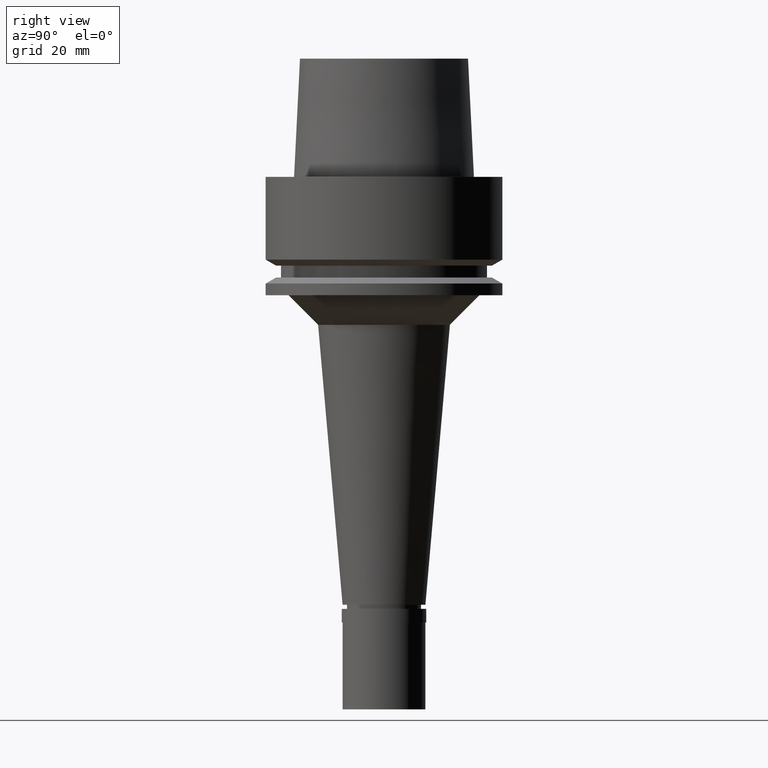
[diagram: clean part render]
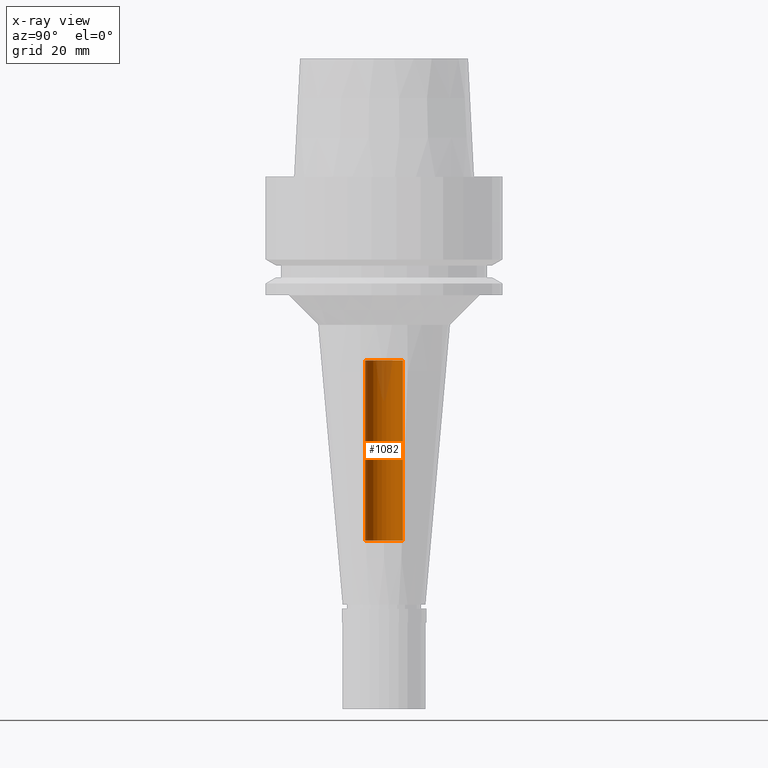
[diagram: x-ray — body ghosted, one internal face saturated and labeled with its STEP entity id]
A machine part, right view, then the same camera in x-ray: the body is ghosted and one INTERNAL B-rep face — a face not visible from any outside direction — is saturated and labeled: STEP entity #1082.
In plain terms, the highlighted cylindrical surface (edge-blend (fillet) strip) has radius 3.2 mm, axis along (0, 0, 1).
Its self-contained STEP definition (entity closure, byte-faithful):
#176 = AXIS2_PLACEMENT_3D ( 'NONE', #197, #1905, #2317 ) ;
#197 = CARTESIAN_POINT ( 'NONE',  ( 0.0000000000000000000, 0.0000000000000000000, -61.50000000000000000 ) ) ;
#375 = DIRECTION ( 'NONE',  ( 0.0000000000000000000, 0.0000000000000000000, 1.000000000000000000 ) ) ;
#414 = EDGE_CURVE ( 'NONE', #2559, #1284, #2516, .T. ) ;
#461 = CARTESIAN_POINT ( 'NONE',  ( 0.0000000000000000000, -3.200000000000000178, -61.50000000000000000 ) ) ;
#467 = AXIS2_PLACEMENT_3D ( 'NONE', #1090, #1711, #666 ) ;
#648 = CARTESIAN_POINT ( 'NONE',  ( 0.0000000000000000000, 0.0000000000000000000, -31.00000000000000000 ) ) ;
#666 = DIRECTION ( 'NONE',  ( 0.0000000000000000000, 1.000000000000000000, 0.0000000000000000000 ) ) ;
#812 = DIRECTION ( 'NONE',  ( 0.0000000000000000000, 1.000000000000000000, 0.0000000000000000000 ) ) ;
#857 = DIRECTION ( 'NONE',  ( 0.0000000000000000000, 0.0000000000000000000, 1.000000000000000000 ) ) ;
#1041 = ORIENTED_EDGE ( 'NONE', *, *, #2254, .T. ) ;
#1082 = ADVANCED_FACE ( 'NONE', ( #1524 ), #1537, .F. ) ;
#1090 = CARTESIAN_POINT ( 'NONE',  ( 0.0000000000000000000, 0.0000000000000000000, -91.30000000000001137 ) ) ;
#1132 = DIRECTION ( 'NONE',  ( 0.0000000000000000000, 0.0000000000000000000, 1.000000000000000000 ) ) ;
#1284 = VERTEX_POINT ( 'NONE', #2431 ) ;
#1324 = ORIENTED_EDGE ( 'NONE', *, *, #2406, .T. ) ;
#1336 = CARTESIAN_POINT ( 'NONE',  ( 0.0000000000000000000, -3.200000000000000178, -61.50000000000000000 ) ) ;
#1393 = ORIENTED_EDGE ( 'NONE', *, *, #414, .F. ) ;
#1524 = FACE_OUTER_BOUND ( 'NONE', #2350, .T. ) ;
#1537 = CYLINDRICAL_SURFACE ( 'NONE', #467, 3.200000000000000178 ) ;
#1559 = VECTOR ( 'NONE', #1132, 1000.000000000000000 ) ;
#1563 = CIRCLE ( 'NONE', #176, 3.200000000000000178 ) ;
#1663 = ORIENTED_EDGE ( 'NONE', *, *, #2418, .T. ) ;
#1703 = AXIS2_PLACEMENT_3D ( 'NONE', #648, #857, #812 ) ;
#1711 = DIRECTION ( 'NONE',  ( 0.0000000000000000000, 0.0000000000000000000, 1.000000000000000000 ) ) ;
#1799 = LINE ( 'NONE', #1984, #2392 ) ;
#1861 = VERTEX_POINT ( 'NONE', #1865 ) ;
#1865 = CARTESIAN_POINT ( 'NONE',  ( 0.0000000000000000000, 3.200000000000000178, -31.00000000000000000 ) ) ;
#1905 = DIRECTION ( 'NONE',  ( 0.0000000000000000000, 0.0000000000000000000, -1.000000000000000000 ) ) ;
#1984 = CARTESIAN_POINT ( 'NONE',  ( 0.0000000000000000000, 3.200000000000000178, -61.50000000000000000 ) ) ;
#2254 = EDGE_CURVE ( 'NONE', #2549, #1861, #1799, .T. ) ;
#2300 = CARTESIAN_POINT ( 'NONE',  ( 0.0000000000000000000, 3.200000000000000178, -61.50000000000000000 ) ) ;
#2317 = DIRECTION ( 'NONE',  ( 0.0000000000000000000, -1.000000000000000000, 0.0000000000000000000 ) ) ;
#2350 = EDGE_LOOP ( 'NONE', ( #1324, #1393, #1663, #1041 ) ) ;
#2392 = VECTOR ( 'NONE', #375, 1000.000000000000000 ) ;
#2406 = EDGE_CURVE ( 'NONE', #1861, #1284, #2487, .T. ) ;
#2418 = EDGE_CURVE ( 'NONE', #2559, #2549, #1563, .T. ) ;
#2431 = CARTESIAN_POINT ( 'NONE',  ( 0.0000000000000000000, -3.200000000000000178, -31.00000000000000000 ) ) ;
#2487 = CIRCLE ( 'NONE', #1703, 3.200000000000000178 ) ;
#2516 = LINE ( 'NONE', #461, #1559 ) ;
#2549 = VERTEX_POINT ( 'NONE', #2300 ) ;
#2559 = VERTEX_POINT ( 'NONE', #1336 ) ;